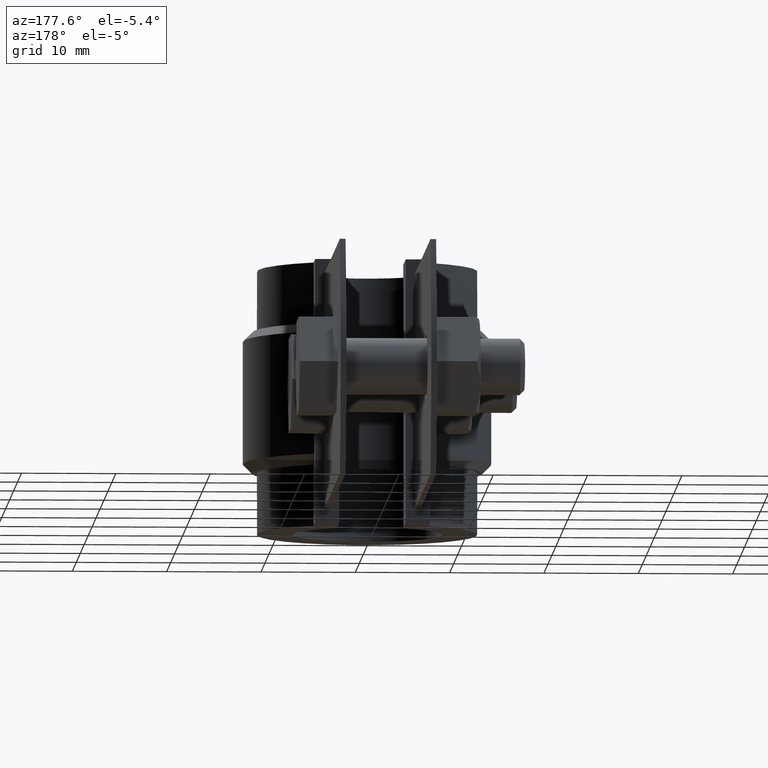
[diagram: clean part render]
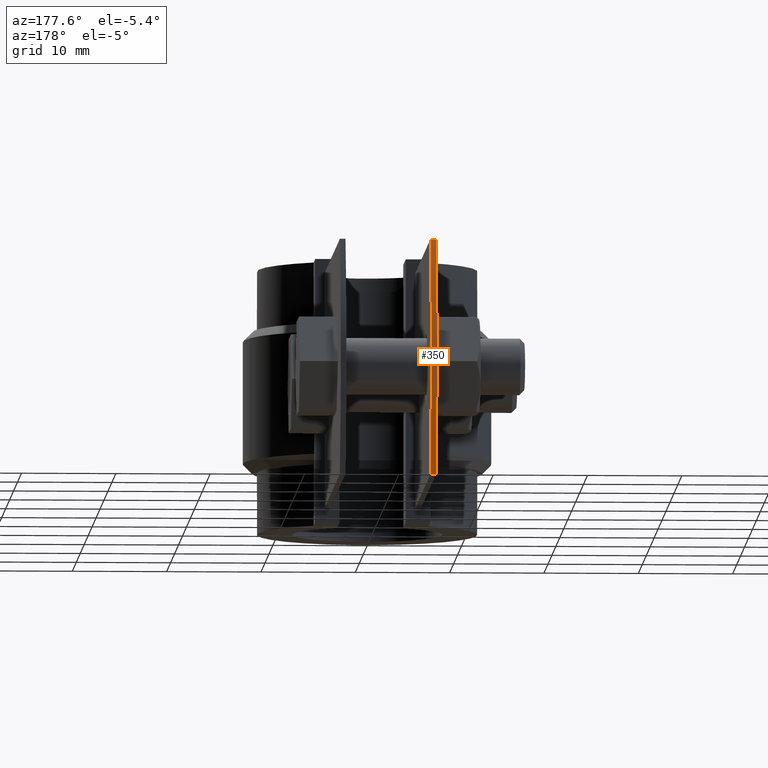
[diagram: same view with one face highlighted and labeled with its STEP entity id]
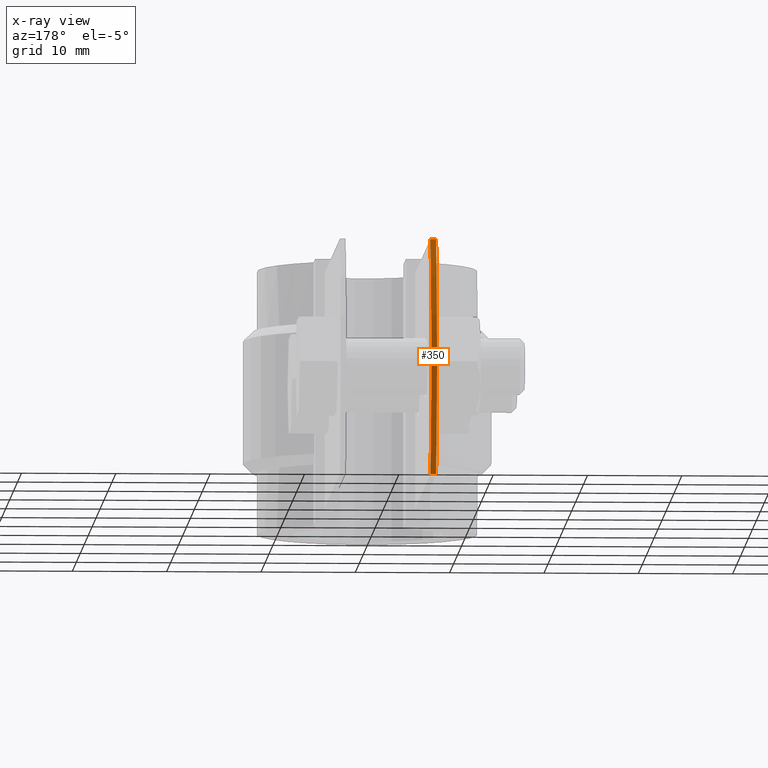
[diagram: x-ray of the same camera — body ghosted, the highlighted face saturated]
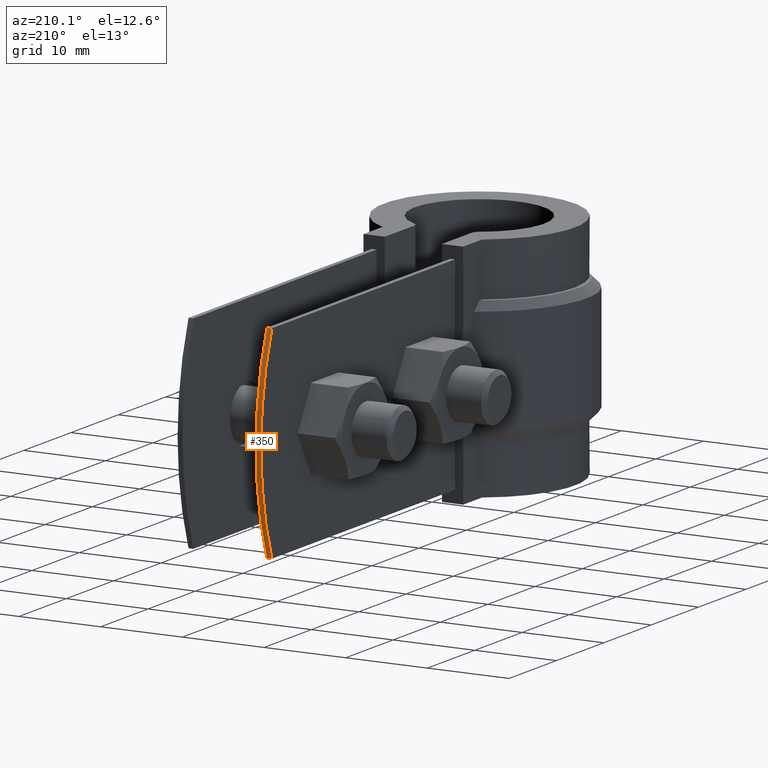
[diagram: same view with one face highlighted and labeled with its STEP entity id]
A machine part, auxiliary view. The second image highlights one B-rep face of the part: STEP entity #350.
The next image is the same camera in x-ray: the body ghosted, the highlighted face saturated — about 0% of this face is hidden behind the body in this view.
A second angle (auxiliary view) of the same face is appended — the face is thin or edge-on in the first view.
In plain terms, the highlighted cylindrical surface (partial cylindrical patch) has radius 35 mm, axis along (-1, 0, -0).
Its self-contained STEP definition (entity closure, byte-faithful):
#350 = ADVANCED_FACE( '', ( #585 ), #586, .T. );
#585 = FACE_OUTER_BOUND( '', #1139, .T. );
#586 = CYLINDRICAL_SURFACE( '', #1140, 35.0000000000000 );
#1139 = EDGE_LOOP( '', ( #2700, #2701, #2702, #2703 ) );
#1140 = AXIS2_PLACEMENT_3D( '', #2704, #2705, #2706 );
#2700 = ORIENTED_EDGE( '', *, *, #4445, .T. );
#2701 = ORIENTED_EDGE( '', *, *, #4392, .T. );
#2702 = ORIENTED_EDGE( '', *, *, #4440, .F. );
#2703 = ORIENTED_EDGE( '', *, *, #4451, .T. );
#2704 = CARTESIAN_POINT( '', ( -70.4921169647916, 19.9554761014033, -12.5000000000000 ) );
#2705 = DIRECTION( '', ( -1.00000000000000, 6.12303176911189E-017, -1.03034893743153E-032 ) );
#2706 = DIRECTION( '', ( 3.83390996249966E-017, 0.626145691720909, -0.779706080994207 ) );
#4392 = EDGE_CURVE( '', #4912, #4913, #4914, .T. );
#4440 = EDGE_CURVE( '', #4995, #4913, #4997, .T. );
#4445 = EDGE_CURVE( '', #5006, #4912, #5007, .T. );
#4451 = EDGE_CURVE( '', #4995, #5006, #5016, .F. );
#4912 = VERTEX_POINT( '', #5847 );
#4913 = VERTEX_POINT( '', #5848 );
#4914 = LINE( '', #5849, #5850 );
#4995 = VERTEX_POINT( '', #6202 );
#4997 = CIRCLE( '', #6205, 35.0000000000000 );
#5006 = VERTEX_POINT( '', #6215 );
#5007 = CIRCLE( '', #6216, 35.0000000000000 );
#5016 = LINE( '', #6227, #6228 );
#5847 = CARTESIAN_POINT( '', ( -5.10000000000002, 52.6472181779583, 4.03010035805967E-031 ) );
#5848 = CARTESIAN_POINT( '', ( -4.49999999999999, 52.6472181779583, 0.000000000000000 ) );
#5849 = CARTESIAN_POINT( '', ( -70.4921169647916, 52.6472181779583, 0.000000000000000 ) );
#5850 = VECTOR( '', #8255, 1000.00000000000 );
#6202 = CARTESIAN_POINT( '', ( -4.49999999999999, 52.6472181779584, -25.0000000000000 ) );
#6205 = AXIS2_PLACEMENT_3D( '', #8303, #8304, #8305 );
#6215 = CARTESIAN_POINT( '', ( -5.10000000000002, 52.6472181779583, -25.0000000000000 ) );
#6216 = AXIS2_PLACEMENT_3D( '', #8316, #8317, #8318 );
#6227 = CARTESIAN_POINT( '', ( -70.4921169647916, 52.6472181779583, -25.0000000000000 ) );
#6228 = VECTOR( '', #8330, 1000.00000000000 );
#8255 = DIRECTION( '', ( 1.00000000000000, -6.12303176911189E-017, 6.16297582203916E-033 ) );
#8303 = CARTESIAN_POINT( '', ( -4.49999999999999, 19.9554761014033, -12.5000000000000 ) );
#8304 = DIRECTION( '', ( 1.00000000000000, -6.12303176911189E-017, 0.000000000000000 ) );
#8305 = DIRECTION( '', ( 6.12303176911189E-017, 1.00000000000000, 0.000000000000000 ) );
#8316 = CARTESIAN_POINT( '', ( -5.09999999999999, 19.9554761014033, -12.5000000000000 ) );
#8317 = DIRECTION( '', ( 1.00000000000000, -6.12303176911189E-017, 0.000000000000000 ) );
#8318 = DIRECTION( '', ( 6.12303176911189E-017, 1.00000000000000, 0.000000000000000 ) );
#8330 = DIRECTION( '', ( 1.00000000000000, -6.12303176911189E-017, 6.16297582203916E-033 ) );